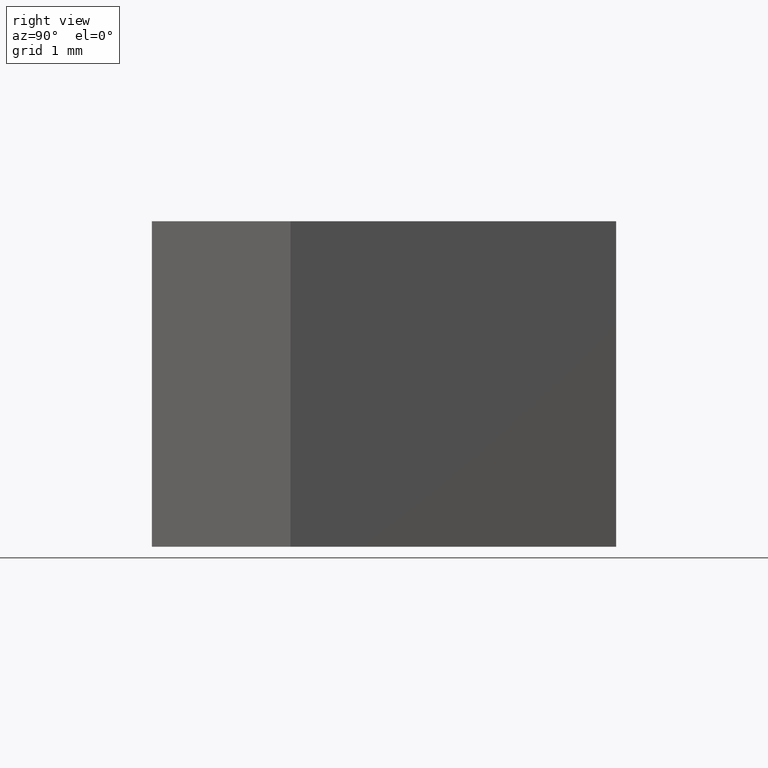
[diagram: clean part render]
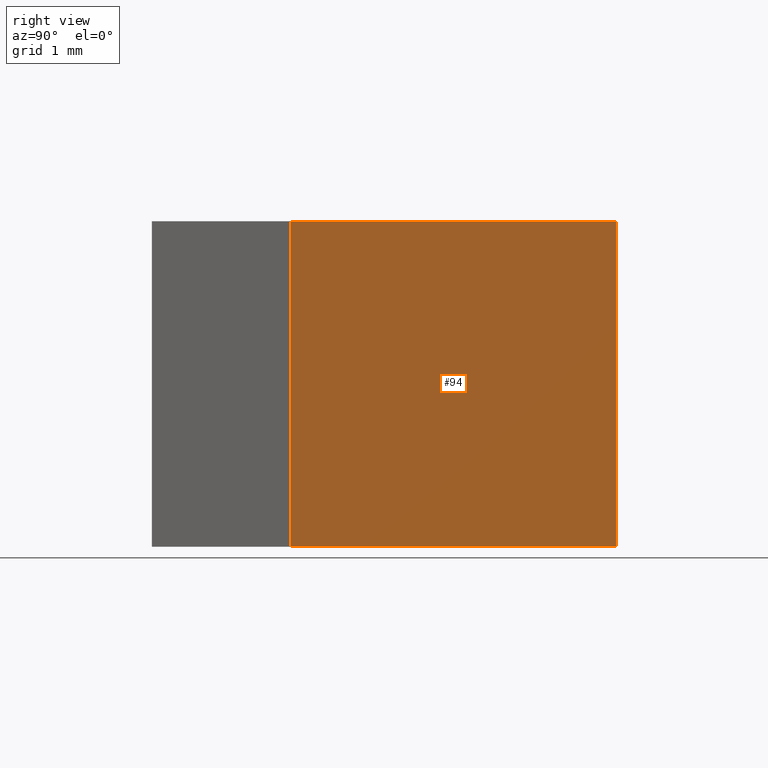
[diagram: same view with one face highlighted and labeled with its STEP entity id]
A machine part, right view. The second image highlights one B-rep face of the part: STEP entity #94.
In plain terms, the highlighted planar face has unit normal (-1, 0, 0).
Its self-contained STEP definition (entity closure, byte-faithful):
#21 = CARTESIAN_POINT ( 'NONE',  ( 16.62476252515132200, 16.24712349419276000, 0.0000000000000000000 ) ) ;
#28 = DIRECTION ( 'NONE',  ( -0.0000000000000000000, -0.0000000000000000000, -1.000000000000000000 ) ) ;
#38 = EDGE_LOOP ( 'NONE', ( #208, #149, #227, #68 ) ) ;
#49 = CARTESIAN_POINT ( 'NONE',  ( 16.62476252515132200, 11.24712349419276000, 5.000000000000000000 ) ) ;
#68 = ORIENTED_EDGE ( 'NONE', *, *, #236, .T. ) ;
#92 = VECTOR ( 'NONE', #127, 1000.000000000000000 ) ;
#94 = ADVANCED_FACE ( 'NONE', ( #193 ), #339, .F. ) ;
#103 = VERTEX_POINT ( 'NONE', #21 ) ;
#106 = DIRECTION ( 'NONE',  ( -0.0000000000000000000, -0.0000000000000000000, -1.000000000000000000 ) ) ;
#108 = CARTESIAN_POINT ( 'NONE',  ( 16.62476252515132200, 11.24712349419276000, 0.0000000000000000000 ) ) ;
#117 = LINE ( 'NONE', #317, #123 ) ;
#123 = VECTOR ( 'NONE', #106, 1000.000000000000000 ) ;
#127 = DIRECTION ( 'NONE',  ( 0.0000000000000000000, 1.000000000000000000, 0.0000000000000000000 ) ) ;
#148 = VECTOR ( 'NONE', #342, 1000.000000000000000 ) ;
#149 = ORIENTED_EDGE ( 'NONE', *, *, #176, .F. ) ;
#150 = EDGE_CURVE ( 'NONE', #238, #275, #256, .T. ) ;
#162 = CARTESIAN_POINT ( 'NONE',  ( 16.62476252515132200, 11.24712349419276000, 5.000000000000000000 ) ) ;
#164 = CARTESIAN_POINT ( 'NONE',  ( 16.62476252515132200, 11.24712349419276000, 0.0000000000000000000 ) ) ;
#176 = EDGE_CURVE ( 'NONE', #275, #103, #253, .T. ) ;
#186 = AXIS2_PLACEMENT_3D ( 'NONE', #49, #281, #235 ) ;
#192 = CARTESIAN_POINT ( 'NONE',  ( 16.62476252515132200, 16.24712349419276000, 5.000000000000000000 ) ) ;
#193 = FACE_OUTER_BOUND ( 'NONE', #38, .T. ) ;
#208 = ORIENTED_EDGE ( 'NONE', *, *, #337, .T. ) ;
#227 = ORIENTED_EDGE ( 'NONE', *, *, #150, .F. ) ;
#235 = DIRECTION ( 'NONE',  ( 0.0000000000000000000, 0.0000000000000000000, 1.000000000000000000 ) ) ;
#236 = EDGE_CURVE ( 'NONE', #238, #322, #117, .T. ) ;
#238 = VERTEX_POINT ( 'NONE', #320 ) ;
#253 = LINE ( 'NONE', #192, #340 ) ;
#256 = LINE ( 'NONE', #162, #92 ) ;
#265 = CARTESIAN_POINT ( 'NONE',  ( 16.62476252515132200, 16.24712349419276000, 5.000000000000000000 ) ) ;
#275 = VERTEX_POINT ( 'NONE', #265 ) ;
#281 = DIRECTION ( 'NONE',  ( -1.000000000000000000, 0.0000000000000000000, 0.0000000000000000000 ) ) ;
#304 = LINE ( 'NONE', #164, #148 ) ;
#317 = CARTESIAN_POINT ( 'NONE',  ( 16.62476252515132200, 11.24712349419276000, 5.000000000000000000 ) ) ;
#320 = CARTESIAN_POINT ( 'NONE',  ( 16.62476252515132200, 11.24712349419276000, 5.000000000000000000 ) ) ;
#322 = VERTEX_POINT ( 'NONE', #108 ) ;
#337 = EDGE_CURVE ( 'NONE', #322, #103, #304, .T. ) ;
#339 = PLANE ( 'NONE',  #186 ) ;
#340 = VECTOR ( 'NONE', #28, 1000.000000000000000 ) ;
#342 = DIRECTION ( 'NONE',  ( 0.0000000000000000000, 1.000000000000000000, 0.0000000000000000000 ) ) ;